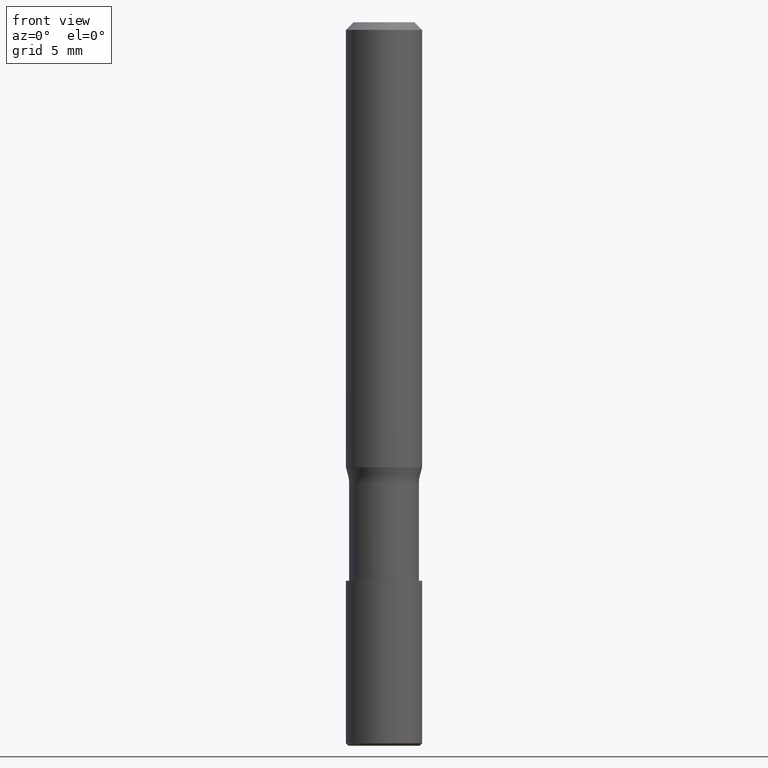
[diagram: clean part render]
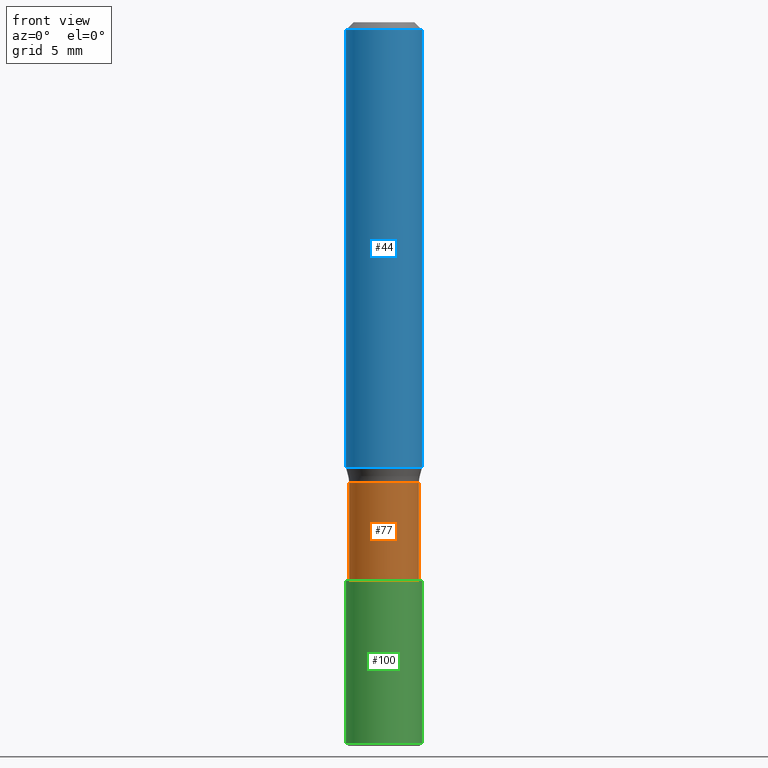
[diagram: same view with three faces highlighted in distinct colors, each labeled with its STEP entity id]
A machine part, front view with three faces highlighted in distinct colors.
Their STEP definitions:

[orange] entity #77 — the highlighted cylindrical surface (bore or boss wall) has radius 2.75 mm, axis along (-0, 0, -1).
#4 = CIRCLE ( 'NONE', #278, 2.750000000000000000 ) ;
#15 = FACE_OUTER_BOUND ( 'NONE', #150, .T. ) ;
#40 = CARTESIAN_POINT ( 'NONE',  ( 0.0000000000000000000, 0.0000000000000000000, 0.0000000000000000000 ) ) ;
#42 = CARTESIAN_POINT ( 'NONE',  ( -2.532253053508595603E-13, 0.0000000000000000000, -36.26330499517479922 ) ) ;
#65 = EDGE_CURVE ( 'NONE', #122, #122, #275, .T. ) ;
#77 = ADVANCED_FACE ( 'NONE', ( #145, #15 ), #211, .T. ) ;
#83 = DIRECTION ( 'NONE',  ( -6.982962677686266711E-15, 0.0000000000000000000, -1.000000000000000000 ) ) ;
#85 = DIRECTION ( 'NONE',  ( -6.982962677686266711E-15, 0.0000000000000000000, -1.000000000000000000 ) ) ;
#93 = EDGE_CURVE ( 'NONE', #133, #133, #4, .T. ) ;
#107 = CARTESIAN_POINT ( 'NONE',  ( -2.750000000000306866, 0.0000000000000000000, -43.99999999999997868 ) ) ;
#120 = DIRECTION ( 'NONE',  ( -6.982962677686266711E-15, 0.0000000000000000000, -1.000000000000000000 ) ) ;
#122 = VERTEX_POINT ( 'NONE', #202 ) ;
#133 = VERTEX_POINT ( 'NONE', #107 ) ;
#134 = DIRECTION ( 'NONE',  ( -1.000000000000000000, 0.0000000000000000000, 6.982962677686266711E-15 ) ) ;
#142 = DIRECTION ( 'NONE',  ( -1.000000000000000000, 0.0000000000000000000, 7.569702440626066317E-15 ) ) ;
#145 = FACE_OUTER_BOUND ( 'NONE', #253, .T. ) ;
#150 = EDGE_LOOP ( 'NONE', ( #208 ) ) ;
#184 = AXIS2_PLACEMENT_3D ( 'NONE', #40, #83, #134 ) ;
#188 = ORIENTED_EDGE ( 'NONE', *, *, #65, .T. ) ;
#191 = AXIS2_PLACEMENT_3D ( 'NONE', #42, #120, #142 ) ;
#195 = DIRECTION ( 'NONE',  ( -1.000000000000000000, 0.0000000000000000000, 7.569702440626067895E-15 ) ) ;
#202 = CARTESIAN_POINT ( 'NONE',  ( -2.750000000000253575, 0.0000000000000000000, -36.26330499517477790 ) ) ;
#208 = ORIENTED_EDGE ( 'NONE', *, *, #93, .F. ) ;
#211 = CYLINDRICAL_SURFACE ( 'NONE', #184, 2.750000000000000000 ) ;
#216 = CARTESIAN_POINT ( 'NONE',  ( -3.072503578181957353E-13, 0.0000000000000000000, -44.00000000000000000 ) ) ;
#253 = EDGE_LOOP ( 'NONE', ( #188 ) ) ;
#275 = CIRCLE ( 'NONE', #191, 2.750000000000000444 ) ;
#278 = AXIS2_PLACEMENT_3D ( 'NONE', #216, #85, #195 ) ;

[blue] entity #44 — the highlighted cylindrical surface (bore or boss wall) has radius 3 mm, axis along (0, 0, 1).
#5 = CARTESIAN_POINT ( 'NONE',  ( -3.980288726281171773E-13, 0.0000000000000000000, -56.99999999999999289 ) ) ;
#9 = CARTESIAN_POINT ( 'NONE',  ( 2.999999999999772182, 0.0000000000000000000, -35.06698729810774040 ) ) ;
#11 = EDGE_CURVE ( 'NONE', #258, #258, #171, .T. ) ;
#35 = EDGE_CURVE ( 'NONE', #87, #87, #50, .T. ) ;
#36 = DIRECTION ( 'NONE',  ( 1.000000000000000000, 0.0000000000000000000, -6.938893903907188146E-15 ) ) ;
#44 = ADVANCED_FACE ( 'NONE', ( #104, #155 ), #207, .T. ) ;
#50 = CIRCLE ( 'NONE', #129, 3.000000000000000000 ) ;
#52 = CARTESIAN_POINT ( 'NONE',  ( 2.999999999999995559, 0.0000000000000000000, -0.6000000000000241807 ) ) ;
#75 = CARTESIAN_POINT ( 'NONE',  ( -4.189777606611783692E-15, 0.0000000000000000000, -0.6000000000000033085 ) ) ;
#82 = ORIENTED_EDGE ( 'NONE', *, *, #35, .F. ) ;
#87 = VERTEX_POINT ( 'NONE', #52 ) ;
#99 = DIRECTION ( 'NONE',  ( 6.982962677686266711E-15, 0.0000000000000000000, 1.000000000000000000 ) ) ;
#104 = FACE_OUTER_BOUND ( 'NONE', #143, .T. ) ;
#129 = AXIS2_PLACEMENT_3D ( 'NONE', #75, #232, #244 ) ;
#130 = AXIS2_PLACEMENT_3D ( 'NONE', #5, #249, #36 ) ;
#143 = EDGE_LOOP ( 'NONE', ( #82 ) ) ;
#155 = FACE_OUTER_BOUND ( 'NONE', #182, .T. ) ;
#171 = CIRCLE ( 'NONE', #226, 3.000000000000017319 ) ;
#182 = EDGE_LOOP ( 'NONE', ( #221 ) ) ;
#207 = CYLINDRICAL_SURFACE ( 'NONE', #130, 3.000000000000017319 ) ;
#221 = ORIENTED_EDGE ( 'NONE', *, *, #11, .T. ) ;
#225 = DIRECTION ( 'NONE',  ( 1.000000000000000000, 0.0000000000000000000, -6.938893903907188146E-15 ) ) ;
#226 = AXIS2_PLACEMENT_3D ( 'NONE', #262, #99, #225 ) ;
#232 = DIRECTION ( 'NONE',  ( 6.982962677686266711E-15, 0.0000000000000000000, 1.000000000000000000 ) ) ;
#244 = DIRECTION ( 'NONE',  ( 1.000000000000000000, 0.0000000000000000000, -6.975033976323412122E-15 ) ) ;
#249 = DIRECTION ( 'NONE',  ( 6.982962677686266711E-15, 0.0000000000000000000, 1.000000000000000000 ) ) ;
#258 = VERTEX_POINT ( 'NONE', #9 ) ;
#262 = CARTESIAN_POINT ( 'NONE',  ( -2.448714635215845979E-13, 0.0000000000000000000, -35.06698729810771908 ) ) ;

[green] entity #100 — the highlighted cylindrical surface (bore or boss wall) has radius 3 mm, axis along (0, 0, 1).
#19 = CARTESIAN_POINT ( 'NONE',  ( -3.000000000000447198, 0.0000000000000000000, -56.79999999999995453 ) ) ;
#27 = FACE_OUTER_BOUND ( 'NONE', #190, .T. ) ;
#38 = DIRECTION ( 'NONE',  ( -6.982962677686266711E-15, -0.0000000000000000000, -1.000000000000000000 ) ) ;
#49 = FACE_OUTER_BOUND ( 'NONE', #115, .T. ) ;
#54 = AXIS2_PLACEMENT_3D ( 'NONE', #235, #86, #220 ) ;
#69 = DIRECTION ( 'NONE',  ( 1.000000000000000000, 0.0000000000000000000, -6.938893903907188146E-15 ) ) ;
#74 = CIRCLE ( 'NONE', #215, 3.000000000000017319 ) ;
#86 = DIRECTION ( 'NONE',  ( -8.958160326633956100E-15, 0.0000000000000000000, -1.000000000000000000 ) ) ;
#92 = EDGE_CURVE ( 'NONE', #175, #175, #246, .T. ) ;
#96 = CYLINDRICAL_SURFACE ( 'NONE', #97, 3.000000000000017319 ) ;
#97 = AXIS2_PLACEMENT_3D ( 'NONE', #201, #204, #69 ) ;
#100 = ADVANCED_FACE ( 'NONE', ( #27, #49 ), #96, .T. ) ;
#115 = EDGE_LOOP ( 'NONE', ( #135 ) ) ;
#135 = ORIENTED_EDGE ( 'NONE', *, *, #189, .T. ) ;
#136 = DIRECTION ( 'NONE',  ( 1.000000000000000000, 0.0000000000000000000, -6.938893903907188146E-15 ) ) ;
#140 = VERTEX_POINT ( 'NONE', #169 ) ;
#169 = CARTESIAN_POINT ( 'NONE',  ( 2.999999999999710454, 0.0000000000000000000, -44.00000000000002132 ) ) ;
#175 = VERTEX_POINT ( 'NONE', #19 ) ;
#189 = EDGE_CURVE ( 'NONE', #140, #140, #74, .T. ) ;
#190 = EDGE_LOOP ( 'NONE', ( #229 ) ) ;
#201 = CARTESIAN_POINT ( 'NONE',  ( -3.980288726281171773E-13, 0.0000000000000000000, -56.99999999999999289 ) ) ;
#204 = DIRECTION ( 'NONE',  ( 6.982962677686266711E-15, 0.0000000000000000000, 1.000000000000000000 ) ) ;
#215 = AXIS2_PLACEMENT_3D ( 'NONE', #270, #38, #136 ) ;
#220 = DIRECTION ( 'NONE',  ( -1.000000000000000000, 0.0000000000000000000, 9.251858538542893336E-15 ) ) ;
#229 = ORIENTED_EDGE ( 'NONE', *, *, #92, .F. ) ;
#235 = CARTESIAN_POINT ( 'NONE',  ( -4.219148099991102118E-13, 0.0000000000000000000, -56.79999999999998295 ) ) ;
#246 = CIRCLE ( 'NONE', #54, 3.000000000000025313 ) ;
#270 = CARTESIAN_POINT ( 'NONE',  ( -3.072503578181957353E-13, 0.0000000000000000000, -44.00000000000000000 ) ) ;